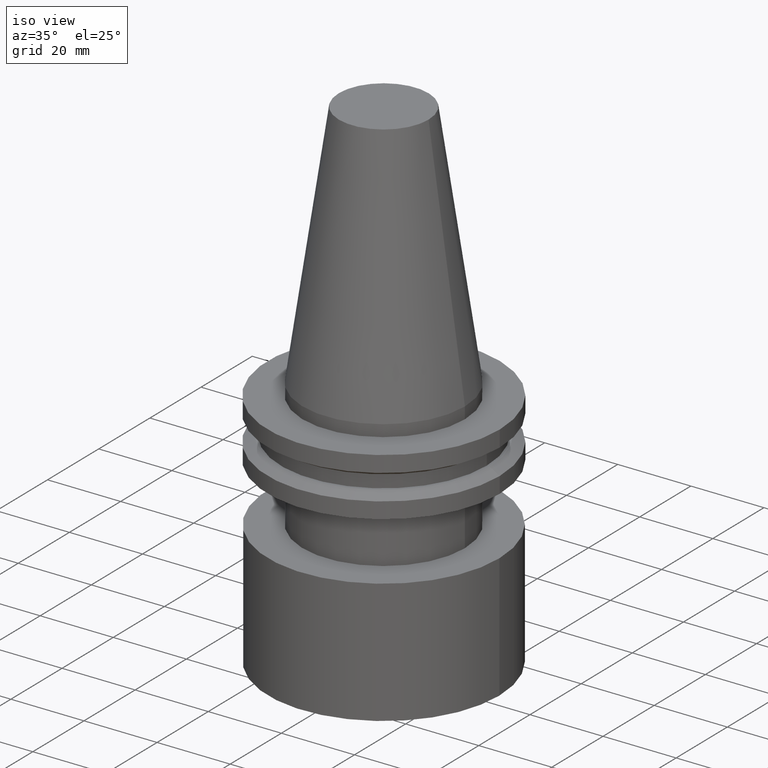
[diagram: clean part render]
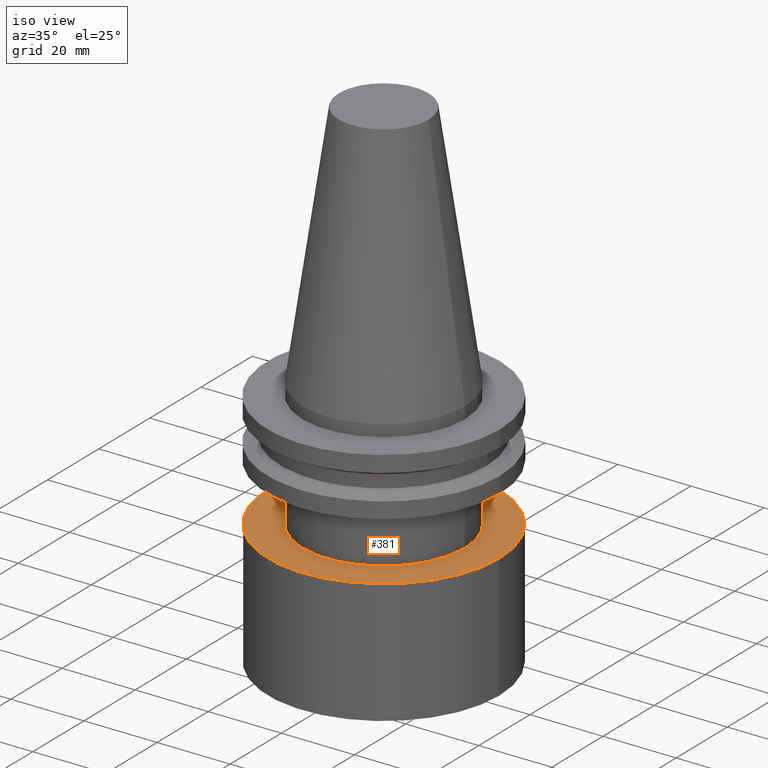
[diagram: same view with one face highlighted and labeled with its STEP entity id]
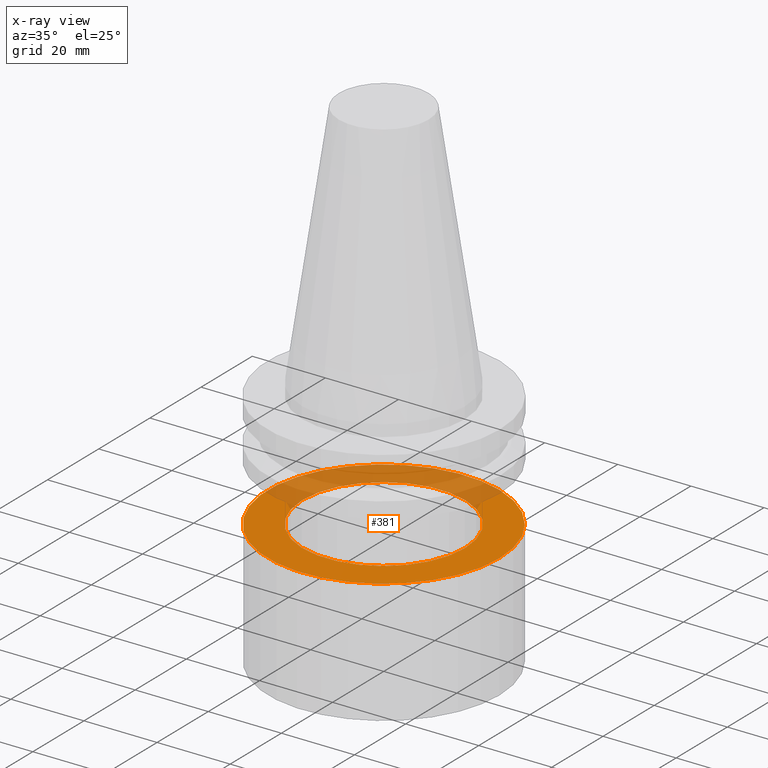
[diagram: x-ray of the same camera — body ghosted, the highlighted face saturated]
A machine part, iso view. The second image highlights one B-rep face of the part: STEP entity #381.
The next image is the same camera in x-ray: the body ghosted, the highlighted face saturated — about 34% of this face is hidden behind the body in this view.
In plain terms, the highlighted planar face has unit normal (0, 0, -1).
Its self-contained STEP definition (entity closure, byte-faithful):
#9 = EDGE_CURVE ( 'NONE', #86, #86, #392, .T. ) ;
#15 = DIRECTION ( 'NONE',  ( 1.000000000000000000, 0.000000000000000000, 0.000000000000000000 ) ) ;
#23 = AXIS2_PLACEMENT_3D ( 'NONE', #147, #116, #90 ) ;
#26 = ORIENTED_EDGE ( 'NONE', *, *, #43, .F. ) ;
#43 = EDGE_CURVE ( 'NONE', #358, #358, #312, .T. ) ;
#86 = VERTEX_POINT ( 'NONE', #364 ) ;
#90 = DIRECTION ( 'NONE',  ( -1.000000000000000000, 0.000000000000000000, -0.000000000000000000 ) ) ;
#116 = DIRECTION ( 'NONE',  ( 0.000000000000000000, 0.000000000000000000, -1.000000000000000000 ) ) ;
#125 = ORIENTED_EDGE ( 'NONE', *, *, #9, .T. ) ;
#141 = PLANE ( 'NONE',  #23 ) ;
#147 = CARTESIAN_POINT ( 'NONE',  ( 0.000000000000000000, 0.000000000000000000, -35.04999999999999716 ) ) ;
#186 = CARTESIAN_POINT ( 'NONE',  ( 0.000000000000000000, 0.000000000000000000, -35.04999999999999716 ) ) ;
#187 = EDGE_LOOP ( 'NONE', ( #125 ) ) ;
#188 = CARTESIAN_POINT ( 'NONE',  ( 0.000000000000000000, 0.000000000000000000, -35.04999999999999716 ) ) ;
#215 = AXIS2_PLACEMENT_3D ( 'NONE', #188, #309, #374 ) ;
#239 = AXIS2_PLACEMENT_3D ( 'NONE', #186, #310, #15 ) ;
#260 = CARTESIAN_POINT ( 'NONE',  ( 22.22500000000000142, 0.000000000000000000, -35.04999999999999716 ) ) ;
#306 = FACE_BOUND ( 'NONE', #356, .T. ) ;
#309 = DIRECTION ( 'NONE',  ( -0.000000000000000000, -0.000000000000000000, 1.000000000000000000 ) ) ;
#310 = DIRECTION ( 'NONE',  ( -0.000000000000000000, -0.000000000000000000, 1.000000000000000000 ) ) ;
#312 = CIRCLE ( 'NONE', #215, 22.22500000000000142 ) ;
#356 = EDGE_LOOP ( 'NONE', ( #26 ) ) ;
#358 = VERTEX_POINT ( 'NONE', #260 ) ;
#364 = CARTESIAN_POINT ( 'NONE',  ( 31.63499999999999801, 0.000000000000000000, -35.04999999999999716 ) ) ;
#374 = DIRECTION ( 'NONE',  ( 1.000000000000000000, 0.000000000000000000, 0.000000000000000000 ) ) ;
#381 = ADVANCED_FACE ( 'NONE', ( #306, #388 ), #141, .F. ) ;
#388 = FACE_OUTER_BOUND ( 'NONE', #187, .T. ) ;
#392 = CIRCLE ( 'NONE', #239, 31.63499999999999801 ) ;